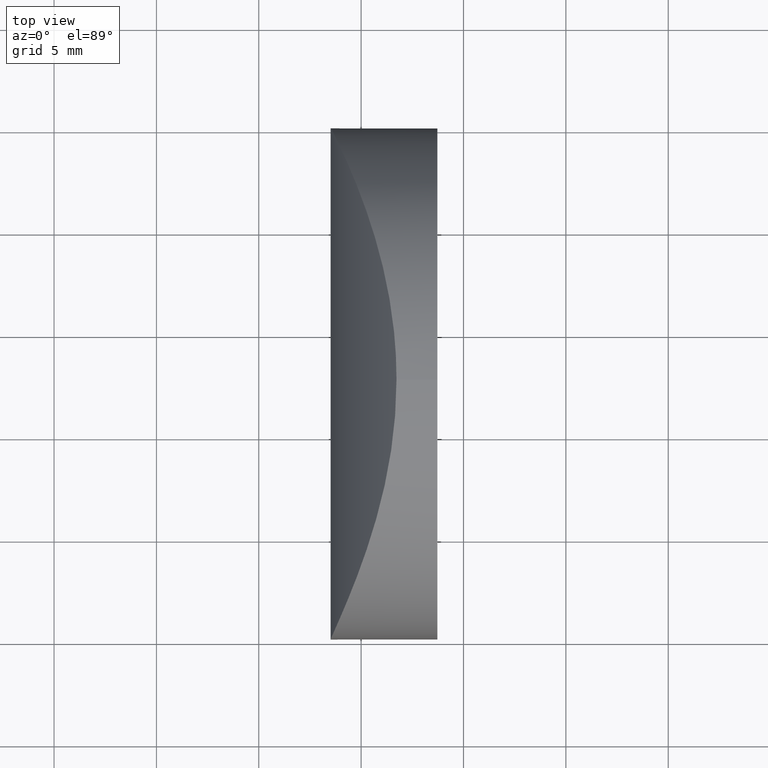
[diagram: clean part render]
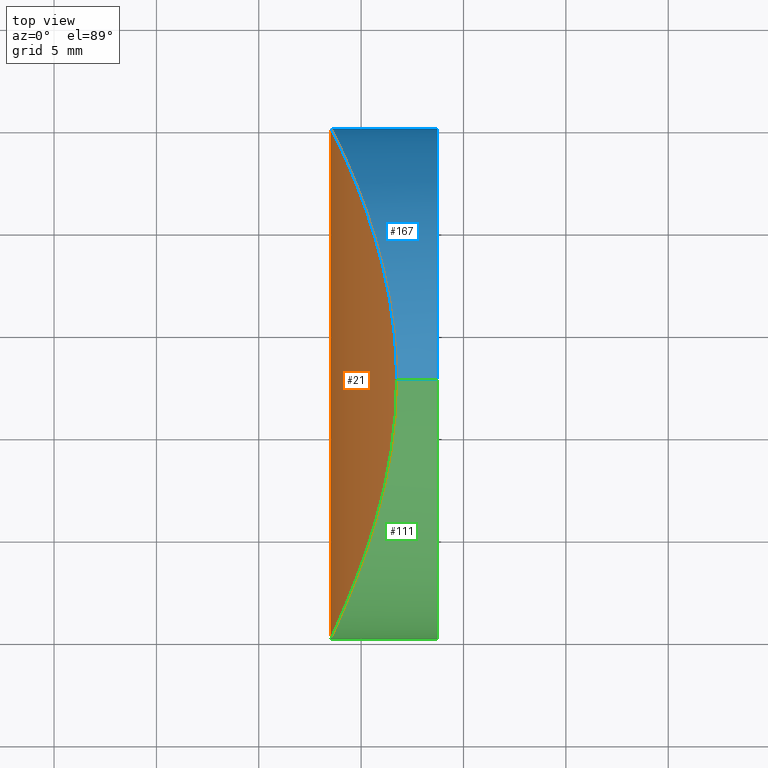
[diagram: same view with three faces highlighted in distinct colors, each labeled with its STEP entity id]
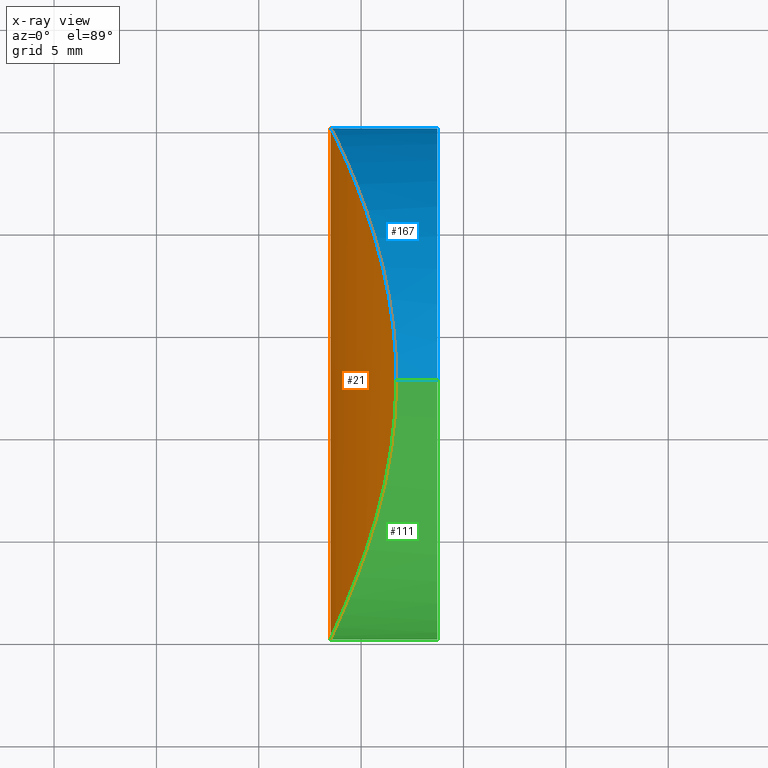
[diagram: x-ray of the same camera — body ghosted, the three highlighted faces saturated]
A machine part, top view with three faces highlighted in distinct colors.
The next image is the same camera in x-ray (body ghosted, the three faces saturated) — at least one of them is partly hidden behind the body in this view.
Their STEP definitions:

[orange] entity #21 — the highlighted cylindrical surface (partial cylindrical patch) has radius 25.85 mm, axis along (-0, -1, -0).
#1 = CARTESIAN_POINT ( 'NONE',  ( -18.70240602303702500, 16.95154989934607700, -11.68760404027151600 ) ) ;
#3 = FACE_OUTER_BOUND ( 'NONE', #39, .T. ) ;
#4 = CARTESIAN_POINT ( 'NONE',  ( -20.44156245546546200, 2.353589546820287600, 7.312014743330159700 ) ) ;
#5 = CARTESIAN_POINT ( 'NONE',  ( -20.44118431422601700, 22.64548785088048900, 7.313298907275904700 ) ) ;
#6 = CARTESIAN_POINT ( 'NONE',  ( -19.72739481466771500, 20.75137822210500700, -9.398244079578816500 ) ) ;
#8 = CARTESIAN_POINT ( 'NONE',  ( -19.41883760231147300, 19.80315594180086000, 10.15274856787935500 ) ) ;
#9 = CARTESIAN_POINT ( 'NONE',  ( -18.63047385431221100, 8.435351003139388100, 11.82792713064483400 ) ) ;
#13 = CARTESIAN_POINT ( 'NONE',  ( -18.31843094212300800, 14.16270583532338300, -12.41623411918229200 ) ) ;
#14 = CYLINDRICAL_SURFACE ( 'NONE', #158, 25.85000000000000500 ) ;
#17 = DIRECTION ( 'NONE',  ( -0.0000000000000000000, -1.000000000000000000, -0.0000000000000000000 ) ) ;
#18 = CARTESIAN_POINT ( 'NONE',  ( -21.11081156137414500, 24.18611729512018400, 4.455569728180015500 ) ) ;
#20 = CARTESIAN_POINT ( 'NONE',  ( -21.33703930934329700, 0.3293759513365440200, 2.880582604825903600 ) ) ;
#21 = ADVANCED_FACE ( 'NONE', ( #3 ), #14, .T. ) ;
#24 = CARTESIAN_POINT ( 'NONE',  ( -19.52163795461448700, 20.13002562355819700, 9.909340674142884000 ) ) ;
#25 = CARTESIAN_POINT ( 'NONE',  ( -19.83196897604203500, 3.949169470847378300, 9.126562245408836200 ) ) ;
#29 = CARTESIAN_POINT ( 'NONE',  ( -18.27160498506833300, 13.33994957588177500, -12.50000000000000000 ) ) ;
#31 = CARTESIAN_POINT ( 'NONE',  ( -19.72816707022187200, 4.246367135913612100, 9.396269530252531900 ) ) ;
#32 = CARTESIAN_POINT ( 'NONE',  ( -20.34228625704819700, 2.598014458656173100, 7.639606416398844000 ) ) ;
#33 = CARTESIAN_POINT ( 'NONE',  ( -18.50589817899405900, 15.78771967101535300, 12.06695041132207400 ) ) ;
#34 = CARTESIAN_POINT ( 'NONE',  ( -18.93880650995016900, 18.08338810621193800, 11.21314338893738900 ) ) ;
#37 = CARTESIAN_POINT ( 'NONE',  ( -21.49472766096213000, 24.99985936734059800, -0.8419274955730371400 ) ) ;
#38 = CARTESIAN_POINT ( 'NONE',  ( -18.45085760132201000, 9.617887782406231900, -12.17023868356398700 ) ) ;
#39 = EDGE_LOOP ( 'NONE', ( #208, #182 ) ) ;
#40 = CARTESIAN_POINT ( 'NONE',  ( -21.28822365938481600, 0.4325015005954184200, 3.285848202634221100 ) ) ;
#41 = CARTESIAN_POINT ( 'NONE',  ( -21.49494924748473700, -0.0003176082883690147400, 0.8347709504129641200 ) ) ;
#48 = CARTESIAN_POINT ( 'NONE',  ( -20.72480777485055000, 23.32610928301981100, 6.301302750242832900 ) ) ;
#52 = CARTESIAN_POINT ( 'NONE',  ( -18.70268098790453900, 8.047018456729013300, 11.68706322112476500 ) ) ;
#53 = CARTESIAN_POINT ( 'NONE',  ( -21.45385133134597000, 24.91594798411068000, -1.667685702775326000 ) ) ;
#55 = CARTESIAN_POINT ( 'NONE',  ( -21.49464121276190200, 0.0003194075535433215400, -0.8442558466217400200 ) ) ;
#56 = CARTESIAN_POINT ( 'NONE',  ( -19.12183236030230700, 6.206077826456388300, 10.83029278370120500 ) ) ;
#57 = CARTESIAN_POINT ( 'NONE',  ( -20.72414146800757400, 23.32456324702938800, -6.303907108934982500 ) ) ;
#60 = CARTESIAN_POINT ( 'NONE',  ( -18.50574310267438300, 9.213371567855354300, -12.06724321453933300 ) ) ;
#65 = CARTESIAN_POINT ( 'NONE',  ( -18.50368577678878900, 15.77241993638042300, -12.07113829577083300 ) ) ;
#68 = CARTESIAN_POINT ( 'NONE',  ( -20.13962153032738900, 3.114915523298480000, -8.266379302377798100 ) ) ;
#69 = CARTESIAN_POINT ( 'NONE',  ( -21.17616359006278900, 24.32750300025196200, 4.065954832770652900 ) ) ;
#70 = CARTESIAN_POINT ( 'NONE',  ( -18.63024021342601300, 16.56331591017902800, -11.82838010083085000 ) ) ;
#71 = CARTESIAN_POINT ( 'NONE',  ( -21.10996517993683600, 0.8157262206458111300, -4.460387085498029000 ) ) ;
#72 = CARTESIAN_POINT ( 'NONE',  ( -20.34134213634395400, 22.39963060002514800, -7.642649774606599800 ) ) ;
#74 = CARTESIAN_POINT ( 'NONE',  ( -21.10879739994929200, 24.18172136900544800, -4.466876030360057600 ) ) ;
#77 = CARTESIAN_POINT ( 'NONE',  ( -21.17359734200285000, 24.32196512203154600, -4.081949235081776100 ) ) ;
#79 = CARTESIAN_POINT ( 'NONE',  ( -18.70392176723665400, 8.040776547653754500, -11.68460189602905800 ) ) ;
#80 = CARTESIAN_POINT ( 'NONE',  ( -21.17535321017341200, 0.6742452814691074500, -4.071024584365550100 ) ) ;
#81 = CARTESIAN_POINT ( 'NONE',  ( -18.44974553401061400, 15.37299095485790300, -12.17231646288395600 ) ) ;
#85 = CARTESIAN_POINT ( 'NONE',  ( -19.72694203444028100, 4.249942391437728300, -9.399402683755738500 ) ) ;
#89 = DIRECTION ( 'NONE',  ( 0.0000000000000000000, 0.0000000000000000000, -1.000000000000000000 ) ) ;
#90 = CARTESIAN_POINT ( 'NONE',  ( -19.41863885798715100, 19.80251705480999600, -10.15321633900803300 ) ) ;
#91 = CARTESIAN_POINT ( 'NONE',  ( -18.50383849896116600, 9.226498979690779500, 12.07085012522144600 ) ) ;
#93 = CARTESIAN_POINT ( 'NONE',  ( -21.10963983893141800, 0.8164433895264816600, 4.462087848866468100 ) ) ;
#94 = CARTESIAN_POINT ( 'NONE',  ( -20.44060078092450900, 22.64406093420792800, -7.315267004343158200 ) ) ;
#95 = CARTESIAN_POINT ( 'NONE',  ( -20.14052076028404100, 21.88743107328531700, 8.263721779567738700 ) ) ;
#96 = CARTESIAN_POINT ( 'NONE',  ( -18.27160498506832900, 12.50000000000000000, -12.50000000000000000 ) ) ;
#97 = CARTESIAN_POINT ( 'NONE',  ( -19.12115235465433500, 6.208678759436716100, -10.83172951033555400 ) ) ;
#98 = CARTESIAN_POINT ( 'NONE',  ( -19.52094303699961500, 4.872150361015510400, -9.911010606443472400 ) ) ;
#104 = CARTESIAN_POINT ( 'NONE',  ( 4.355204334851265500, 25.00000000000000000, 4.286263797015675000E-017 ) ) ;
#106 = CARTESIAN_POINT ( 'NONE',  ( -21.17440029220077200, 0.6763020526081724400, 4.076945583734061400 ) ) ;
#107 = CARTESIAN_POINT ( 'NONE',  ( -20.72510263640964100, 1.673213537857158400, 6.300120131191813600 ) ) ;
#108 = CARTESIAN_POINT ( 'NONE',  ( -18.70419534461132100, 16.96064557591329700, 11.68406362946771400 ) ) ;
#109 = CARTESIAN_POINT ( 'NONE',  ( -20.34191516766071200, 22.40106185924512500, 7.640807147493392300 ) ) ;
#110 = EDGE_CURVE ( 'NONE', #219, #188, #217, .T. ) ;
#113 = CARTESIAN_POINT ( 'NONE',  ( -19.12132492067417300, 18.79201609963201800, -10.83137862194528400 ) ) ;
#116 = CARTESIAN_POINT ( 'NONE',  ( -20.03791678446253100, 21.61711241338396800, 8.560906680482425200 ) ) ;
#117 = CARTESIAN_POINT ( 'NONE',  ( -20.89441355162401200, 1.290616219030798600, -5.591863916841161200 ) ) ;
#123 = CARTESIAN_POINT ( 'NONE',  ( -20.03704535129930500, 3.385219746193157200, -8.563383267257087500 ) ) ;
#125 = CARTESIAN_POINT ( 'NONE',  ( -21.33640643598634800, 24.66928886546119400, -2.886198797000703500 ) ) ;
#126 = CARTESIAN_POINT ( 'NONE',  ( -21.33718792627720300, 0.3290646914393667900, -2.878903319281720400 ) ) ;
#127 = CARTESIAN_POINT ( 'NONE',  ( -18.45097640866272600, 15.38307043306696700, 12.17001652328602300 ) ) ;
#130 = CARTESIAN_POINT ( 'NONE',  ( -21.49486350026730400, 25.00014028302671700, 0.8377463910678419900 ) ) ;
#132 = CARTESIAN_POINT ( 'NONE',  ( -19.52138010644813100, 20.12921656202763600, -9.909959081310583800 ) ) ;
#133 = CARTESIAN_POINT ( 'NONE',  ( -18.31845340280766300, 10.83485904577776200, -12.41621630777484200 ) ) ;
#135 = CARTESIAN_POINT ( 'NONE',  ( -20.14093956500315800, 3.111478173514480100, 8.262479154108021400 ) ) ;
#137 = CARTESIAN_POINT ( 'NONE',  ( -19.41929275309724900, 5.195351625839095700, 10.15168885736246600 ) ) ;
#139 = EDGE_CURVE ( 'NONE', #188, #219, #178, .T. ) ;
#141 = CARTESIAN_POINT ( 'NONE',  ( -18.27160498506832200, 12.50000000000000200, 12.50000000000001100 ) ) ;
#146 = CARTESIAN_POINT ( 'NONE',  ( -20.72384487807244800, 1.676118177083455900, -6.305095198358583500 ) ) ;
#147 = CARTESIAN_POINT ( 'NONE',  ( -21.33781501767339300, 24.67225817017655800, 2.873324840803535000 ) ) ;
#152 = CARTESIAN_POINT ( 'NONE',  ( -18.63262010058380700, 16.57666098186030400, 11.82375693692428000 ) ) ;
#155 = CARTESIAN_POINT ( 'NONE',  ( -19.72771416886005700, 20.75231221879881700, 9.397428725765403000 ) ) ;
#157 = CARTESIAN_POINT ( 'NONE',  ( -18.27160498506832900, 12.50000000000000000, -12.50000000000000000 ) ) ;
#158 = AXIS2_PLACEMENT_3D ( 'NONE', #104, #17, #89 ) ;
#163 = CARTESIAN_POINT ( 'NONE',  ( -18.93835144248745900, 6.917964795757003800, 11.21413609760948300 ) ) ;
#164 = CARTESIAN_POINT ( 'NONE',  ( -21.45372547659947300, 0.08432672972229476900, -1.667351094841247800 ) ) ;
#165 = CARTESIAN_POINT ( 'NONE',  ( -20.03835218701706500, 3.381724409040712600, 8.559666547531309200 ) ) ;
#168 = CARTESIAN_POINT ( 'NONE',  ( -18.27160498506832200, 13.34023443830584400, 12.50000000000001100 ) ) ;
#170 = CARTESIAN_POINT ( 'NONE',  ( -21.45412927166883000, 24.91650930259949300, 1.661251078944563400 ) ) ;
#172 = CARTESIAN_POINT ( 'NONE',  ( -19.83151652482670700, 21.04955243043450300, 9.127760688660727000 ) ) ;
#174 = CARTESIAN_POINT ( 'NONE',  ( -21.45425667348072500, 0.08321287185746996400, 1.661559786139770000 ) ) ;
#175 = CARTESIAN_POINT ( 'NONE',  ( -18.31848523635723300, 14.16570070430319500, 12.41616004890406600 ) ) ;
#178 = B_SPLINE_CURVE_WITH_KNOTS ( 'NONE', 3,
 ( #200, #221, #230, #218, #91, #9, #52, #163, #56, #137, #197, #31, #25, #165, #135, #32, #4, #107, #220, #93, #106, #40, #20, #174, #41, #55, #164, #126, #209, #80, #71, #117, #146, #206, #215, #68, #123, #214, #85, #98, #227, #97, #205, #79, #189, #60, #38, #133, #226, #96 ),
 .UNSPECIFIED., .F., .F.,
 ( 4, 2, 2, 2, 2, 2, 2, 2, 2, 2, 2, 2, 2, 2, 2, 2, 2, 2, 2, 2, 2, 2, 2, 2, 4 ),
 ( 0.01984818097784744500, 0.02232946100564742200, 0.02357010101954740800, 0.02481074103344739500, 0.02729202106124737100, 0.02853266107514736100, 0.02977330108904734800, 0.03101394110294733800, 0.03225458111684732800, 0.03473586114464730100, 0.03597650115854728000, 0.03721714117244727400, 0.03969842120024723300, 0.04217970122804720600, 0.04342034124194718600, 0.04466098125584716500, 0.04714226128364713800, 0.04838290129754711800, 0.04962354131144709700, 0.05086418132534707700, 0.05210482133924705700, 0.05458610136704701600, 0.05582674138094699500, 0.05706738139484697500, 0.05954866142264693400 ),
 .UNSPECIFIED. ) ;
#179 = CARTESIAN_POINT ( 'NONE',  ( -18.27160498506832900, 12.50000000000000000, -12.50000000000000000 ) ) ;
#182 = ORIENTED_EDGE ( 'NONE', *, *, #139, .F. ) ;
#185 = CARTESIAN_POINT ( 'NONE',  ( -20.89417954816456900, 23.70882713063732400, -5.592367728451336900 ) ) ;
#187 = CARTESIAN_POINT ( 'NONE',  ( -20.14004038279987400, 21.88617558916645200, -8.265136986377456200 ) ) ;
#188 = VERTEX_POINT ( 'NONE', #141 ) ;
#189 = CARTESIAN_POINT ( 'NONE',  ( -18.63238859369455400, 8.424654939983508200, -11.82420601527334700 ) ) ;
#190 = CARTESIAN_POINT ( 'NONE',  ( -18.93794263422852700, 18.08030465869330800, -11.21497832143791000 ) ) ;
#196 = CARTESIAN_POINT ( 'NONE',  ( -20.89535130820467000, 23.71149176145042900, 5.587683655581534100 ) ) ;
#197 = CARTESIAN_POINT ( 'NONE',  ( -19.52207520773850600, 4.868607232266949600, 9.908288498266024600 ) ) ;
#200 = CARTESIAN_POINT ( 'NONE',  ( -18.27160498506832200, 12.50000000000000200, 12.50000000000001100 ) ) ;
#202 = CARTESIAN_POINT ( 'NONE',  ( -19.83116100217930700, 21.04854442224913700, -9.128697585979885800 ) ) ;
#204 = CARTESIAN_POINT ( 'NONE',  ( -19.12165836689077400, 18.79322246846567500, 10.83064687512930000 ) ) ;
#205 = CARTESIAN_POINT ( 'NONE',  ( -18.93839936234375500, 6.918335192272131500, -11.21398230071434200 ) ) ;
#206 = CARTESIAN_POINT ( 'NONE',  ( -20.44022327619455500, 2.356860323959534900, -7.316548250817506400 ) ) ;
#208 = ORIENTED_EDGE ( 'NONE', *, *, #110, .F. ) ;
#209 = CARTESIAN_POINT ( 'NONE',  ( -21.28912377972793700, 0.4305894696038837800, -3.278878661696361900 ) ) ;
#214 = CARTESIAN_POINT ( 'NONE',  ( -19.83070863452401500, 3.952733741957625400, -9.129895485231804400 ) ) ;
#215 = CARTESIAN_POINT ( 'NONE',  ( -20.34097090099788100, 2.601293632541305600, -7.643850447021880400 ) ) ;
#216 = CARTESIAN_POINT ( 'NONE',  ( -21.28981706373304000, 24.57088238852015700, 3.273471289871650900 ) ) ;
#217 = B_SPLINE_CURVE_WITH_KNOTS ( 'NONE', 3,
 ( #157, #29, #13, #81, #65, #70, #1, #190, #113, #90, #132, #6, #202, #225, #187, #72, #94, #57, #185, #74, #77, #222, #125, #53, #37, #130, #170, #147, #216, #69, #18, #196, #48, #5, #109, #95, #116, #172, #155, #24, #8, #204, #34, #108, #152, #33, #127, #175, #168, #224 ),
 .UNSPECIFIED., .F., .F.,
 ( 4, 2, 2, 2, 2, 2, 2, 2, 2, 2, 2, 2, 2, 2, 2, 2, 2, 2, 2, 2, 2, 2, 2, 2, 4 ),
 ( -0.01985229858081783200, -0.01737101860840126900, -0.01613037862219298500, -0.01488973863598470000, -0.01240845866356813200, -0.01116781867735984500, -0.009927178691151559600, -0.008686538704943272800, -0.007445898718734985900, -0.004964618746318408600, -0.003723978760110116500, -0.002483338773901826200, -2.058801485245453900E-006, 0.002479221170931335300, 0.003719861157139622100, 0.004960501143347912500, 0.007441781115764496700, 0.008682421101972790500, 0.009923061088181080900, 0.01116370107438937500, 0.01240434106059766900, 0.01488562103301425600, 0.01612626101922255300, 0.01736690100543085100, 0.01984818097784744500 ),
 .UNSPECIFIED. ) ;
#218 = CARTESIAN_POINT ( 'NONE',  ( -18.44986326270227700, 9.626056688685647300, 12.17209636246921000 ) ) ;
#219 = VERTEX_POINT ( 'NONE', #179 ) ;
#220 = CARTESIAN_POINT ( 'NONE',  ( -20.89511413187703300, 1.289071948691188600, 5.588200461055563100 ) ) ;
#221 = CARTESIAN_POINT ( 'NONE',  ( -18.27160498506832600, 11.65976554293972200, 12.50000000000001400 ) ) ;
#222 = CARTESIAN_POINT ( 'NONE',  ( -21.28752061446924100, 24.56600543331906600, -3.291303964605791300 ) ) ;
#224 = CARTESIAN_POINT ( 'NONE',  ( -18.27160498506832200, 12.50000000000000200, 12.50000000000001100 ) ) ;
#225 = CARTESIAN_POINT ( 'NONE',  ( -20.03748075472218200, 21.61594369234210700, -8.562143537309458100 ) ) ;
#226 = CARTESIAN_POINT ( 'NONE',  ( -18.27160498506833300, 11.66005040537014600, -12.50000000000000200 ) ) ;
#227 = CARTESIAN_POINT ( 'NONE',  ( -19.41818397272892200, 5.198974968693983500, -10.15427522162474400 ) ) ;
#230 = CARTESIAN_POINT ( 'NONE',  ( -18.31846275041462100, 10.83673597883052000, 12.41617786806475000 ) ) ;

[blue] entity #167 — the highlighted cylindrical surface (partial cylindrical patch) has radius 12.5 mm, axis along (1, -0, -0).
#1 = CARTESIAN_POINT ( 'NONE',  ( -18.70240602303702500, 16.95154989934607700, -11.68760404027151600 ) ) ;
#5 = CARTESIAN_POINT ( 'NONE',  ( -20.44118431422601700, 22.64548785088048900, 7.313298907275904700 ) ) ;
#6 = CARTESIAN_POINT ( 'NONE',  ( -19.72739481466771500, 20.75137822210500700, -9.398244079578816500 ) ) ;
#8 = CARTESIAN_POINT ( 'NONE',  ( -19.41883760231147300, 19.80315594180086000, 10.15274856787935500 ) ) ;
#11 = EDGE_CURVE ( 'NONE', #219, #229, #101, .T. ) ;
#13 = CARTESIAN_POINT ( 'NONE',  ( -18.31843094212300800, 14.16270583532338300, -12.41623411918229200 ) ) ;
#18 = CARTESIAN_POINT ( 'NONE',  ( -21.11081156137414500, 24.18611729512018400, 4.455569728180015500 ) ) ;
#19 = DIRECTION ( 'NONE',  ( 1.000000000000000000, -0.0000000000000000000, -2.775557561562888400E-016 ) ) ;
#24 = CARTESIAN_POINT ( 'NONE',  ( -19.52163795461448700, 20.13002562355819700, 9.909340674142884000 ) ) ;
#29 = CARTESIAN_POINT ( 'NONE',  ( -18.27160498506833300, 13.33994957588177500, -12.50000000000000000 ) ) ;
#33 = CARTESIAN_POINT ( 'NONE',  ( -18.50589817899405900, 15.78771967101535300, 12.06695041132207400 ) ) ;
#34 = CARTESIAN_POINT ( 'NONE',  ( -18.93880650995016900, 18.08338810621193800, 11.21314338893738900 ) ) ;
#37 = CARTESIAN_POINT ( 'NONE',  ( -21.49472766096213000, 24.99985936734059800, -0.8419274955730371400 ) ) ;
#43 = EDGE_CURVE ( 'NONE', #229, #58, #73, .T. ) ;
#48 = CARTESIAN_POINT ( 'NONE',  ( -20.72480777485055000, 23.32610928301981100, 6.301302750242832900 ) ) ;
#49 = ORIENTED_EDGE ( 'NONE', *, *, #11, .F. ) ;
#53 = CARTESIAN_POINT ( 'NONE',  ( -21.45385133134597000, 24.91594798411068000, -1.667685702775326000 ) ) ;
#57 = CARTESIAN_POINT ( 'NONE',  ( -20.72414146800757400, 23.32456324702938800, -6.303907108934982500 ) ) ;
#58 = VERTEX_POINT ( 'NONE', #162 ) ;
#61 = AXIS2_PLACEMENT_3D ( 'NONE', #184, #19, #114 ) ;
#64 = DIRECTION ( 'NONE',  ( 1.000000000000000000, -0.0000000000000000000, -2.775557561562888400E-016 ) ) ;
#65 = CARTESIAN_POINT ( 'NONE',  ( -18.50368577678878900, 15.77241993638042300, -12.07113829577083300 ) ) ;
#69 = CARTESIAN_POINT ( 'NONE',  ( -21.17616359006278900, 24.32750300025196200, 4.065954832770652900 ) ) ;
#70 = CARTESIAN_POINT ( 'NONE',  ( -18.63024021342601300, 16.56331591017902800, -11.82838010083085000 ) ) ;
#72 = CARTESIAN_POINT ( 'NONE',  ( -20.34134213634395400, 22.39963060002514800, -7.642649774606599800 ) ) ;
#73 = CIRCLE ( 'NONE', #145, 12.50000000000000500 ) ;
#74 = CARTESIAN_POINT ( 'NONE',  ( -21.10879739994929200, 24.18172136900544800, -4.466876030360057600 ) ) ;
#77 = CARTESIAN_POINT ( 'NONE',  ( -21.17359734200285000, 24.32196512203154600, -4.081949235081776100 ) ) ;
#78 = CARTESIAN_POINT ( 'NONE',  ( -16.27479566514873700, 12.50000000000000000, -12.50000000000000000 ) ) ;
#81 = CARTESIAN_POINT ( 'NONE',  ( -18.44974553401061400, 15.37299095485790300, -12.17231646288395600 ) ) ;
#82 = CARTESIAN_POINT ( 'NONE',  ( -28.97479566514872900, 12.50000000000000200, 12.50000000000001400 ) ) ;
#83 = VECTOR ( 'NONE', #64, 1000.000000000000000 ) ;
#84 = CARTESIAN_POINT ( 'NONE',  ( -16.27479566514873400, 12.50000000000000000, 4.517163217129455500E-015 ) ) ;
#90 = CARTESIAN_POINT ( 'NONE',  ( -19.41863885798715100, 19.80251705480999600, -10.15321633900803300 ) ) ;
#92 = EDGE_CURVE ( 'NONE', #188, #58, #211, .T. ) ;
#94 = CARTESIAN_POINT ( 'NONE',  ( -20.44060078092450900, 22.64406093420792800, -7.315267004343158200 ) ) ;
#95 = CARTESIAN_POINT ( 'NONE',  ( -20.14052076028404100, 21.88743107328531700, 8.263721779567738700 ) ) ;
#101 = LINE ( 'NONE', #143, #181 ) ;
#108 = CARTESIAN_POINT ( 'NONE',  ( -18.70419534461132100, 16.96064557591329700, 11.68406362946771400 ) ) ;
#109 = CARTESIAN_POINT ( 'NONE',  ( -20.34191516766071200, 22.40106185924512500, 7.640807147493392300 ) ) ;
#110 = EDGE_CURVE ( 'NONE', #219, #188, #217, .T. ) ;
#113 = CARTESIAN_POINT ( 'NONE',  ( -19.12132492067417300, 18.79201609963201800, -10.83137862194528400 ) ) ;
#114 = DIRECTION ( 'NONE',  ( -2.775557561562890400E-016, 0.0000000000000000000, -1.000000000000000000 ) ) ;
#116 = CARTESIAN_POINT ( 'NONE',  ( -20.03791678446253100, 21.61711241338396800, 8.560906680482425200 ) ) ;
#120 = FACE_OUTER_BOUND ( 'NONE', #131, .T. ) ;
#125 = CARTESIAN_POINT ( 'NONE',  ( -21.33640643598634800, 24.66928886546119400, -2.886198797000703500 ) ) ;
#127 = CARTESIAN_POINT ( 'NONE',  ( -18.45097640866272600, 15.38307043306696700, 12.17001652328602300 ) ) ;
#130 = CARTESIAN_POINT ( 'NONE',  ( -21.49486350026730400, 25.00014028302671700, 0.8377463910678419900 ) ) ;
#131 = EDGE_LOOP ( 'NONE', ( #228, #212, #192, #49 ) ) ;
#132 = CARTESIAN_POINT ( 'NONE',  ( -19.52138010644813100, 20.12921656202763600, -9.909959081310583800 ) ) ;
#134 = CYLINDRICAL_SURFACE ( 'NONE', #61, 12.50000000000000500 ) ;
#141 = CARTESIAN_POINT ( 'NONE',  ( -18.27160498506832200, 12.50000000000000200, 12.50000000000001100 ) ) ;
#143 = CARTESIAN_POINT ( 'NONE',  ( -28.97479566514873600, 12.50000000000000000, -12.49999999999999600 ) ) ;
#145 = AXIS2_PLACEMENT_3D ( 'NONE', #84, #210, #191 ) ;
#147 = CARTESIAN_POINT ( 'NONE',  ( -21.33781501767339300, 24.67225817017655800, 2.873324840803535000 ) ) ;
#152 = CARTESIAN_POINT ( 'NONE',  ( -18.63262010058380700, 16.57666098186030400, 11.82375693692428000 ) ) ;
#155 = CARTESIAN_POINT ( 'NONE',  ( -19.72771416886005700, 20.75231221879881700, 9.397428725765403000 ) ) ;
#157 = CARTESIAN_POINT ( 'NONE',  ( -18.27160498506832900, 12.50000000000000000, -12.50000000000000000 ) ) ;
#161 = DIRECTION ( 'NONE',  ( 1.000000000000000000, -0.0000000000000000000, -2.775557561562888400E-016 ) ) ;
#162 = CARTESIAN_POINT ( 'NONE',  ( -16.27479566514873000, 12.50000000000000200, 12.50000000000001100 ) ) ;
#167 = ADVANCED_FACE ( 'NONE', ( #120 ), #134, .T. ) ;
#168 = CARTESIAN_POINT ( 'NONE',  ( -18.27160498506832200, 13.34023443830584400, 12.50000000000001100 ) ) ;
#170 = CARTESIAN_POINT ( 'NONE',  ( -21.45412927166883000, 24.91650930259949300, 1.661251078944563400 ) ) ;
#172 = CARTESIAN_POINT ( 'NONE',  ( -19.83151652482670700, 21.04955243043450300, 9.127760688660727000 ) ) ;
#175 = CARTESIAN_POINT ( 'NONE',  ( -18.31848523635723300, 14.16570070430319500, 12.41616004890406600 ) ) ;
#179 = CARTESIAN_POINT ( 'NONE',  ( -18.27160498506832900, 12.50000000000000000, -12.50000000000000000 ) ) ;
#181 = VECTOR ( 'NONE', #161, 1000.000000000000000 ) ;
#184 = CARTESIAN_POINT ( 'NONE',  ( -28.97479566514873300, 12.50000000000000000, 8.042121320314324400E-015 ) ) ;
#185 = CARTESIAN_POINT ( 'NONE',  ( -20.89417954816456900, 23.70882713063732400, -5.592367728451336900 ) ) ;
#187 = CARTESIAN_POINT ( 'NONE',  ( -20.14004038279987400, 21.88617558916645200, -8.265136986377456200 ) ) ;
#188 = VERTEX_POINT ( 'NONE', #141 ) ;
#190 = CARTESIAN_POINT ( 'NONE',  ( -18.93794263422852700, 18.08030465869330800, -11.21497832143791000 ) ) ;
#191 = DIRECTION ( 'NONE',  ( -2.775557561562890400E-016, 0.0000000000000000000, -1.000000000000000000 ) ) ;
#192 = ORIENTED_EDGE ( 'NONE', *, *, #43, .F. ) ;
#196 = CARTESIAN_POINT ( 'NONE',  ( -20.89535130820467000, 23.71149176145042900, 5.587683655581534100 ) ) ;
#202 = CARTESIAN_POINT ( 'NONE',  ( -19.83116100217930700, 21.04854442224913700, -9.128697585979885800 ) ) ;
#204 = CARTESIAN_POINT ( 'NONE',  ( -19.12165836689077400, 18.79322246846567500, 10.83064687512930000 ) ) ;
#210 = DIRECTION ( 'NONE',  ( 1.000000000000000000, 0.0000000000000000000, -2.510324564891254900E-016 ) ) ;
#211 = LINE ( 'NONE', #82, #83 ) ;
#212 = ORIENTED_EDGE ( 'NONE', *, *, #92, .T. ) ;
#216 = CARTESIAN_POINT ( 'NONE',  ( -21.28981706373304000, 24.57088238852015700, 3.273471289871650900 ) ) ;
#217 = B_SPLINE_CURVE_WITH_KNOTS ( 'NONE', 3,
 ( #157, #29, #13, #81, #65, #70, #1, #190, #113, #90, #132, #6, #202, #225, #187, #72, #94, #57, #185, #74, #77, #222, #125, #53, #37, #130, #170, #147, #216, #69, #18, #196, #48, #5, #109, #95, #116, #172, #155, #24, #8, #204, #34, #108, #152, #33, #127, #175, #168, #224 ),
 .UNSPECIFIED., .F., .F.,
 ( 4, 2, 2, 2, 2, 2, 2, 2, 2, 2, 2, 2, 2, 2, 2, 2, 2, 2, 2, 2, 2, 2, 2, 2, 4 ),
 ( -0.01985229858081783200, -0.01737101860840126900, -0.01613037862219298500, -0.01488973863598470000, -0.01240845866356813200, -0.01116781867735984500, -0.009927178691151559600, -0.008686538704943272800, -0.007445898718734985900, -0.004964618746318408600, -0.003723978760110116500, -0.002483338773901826200, -2.058801485245453900E-006, 0.002479221170931335300, 0.003719861157139622100, 0.004960501143347912500, 0.007441781115764496700, 0.008682421101972790500, 0.009923061088181080900, 0.01116370107438937500, 0.01240434106059766900, 0.01488562103301425600, 0.01612626101922255300, 0.01736690100543085100, 0.01984818097784744500 ),
 .UNSPECIFIED. ) ;
#219 = VERTEX_POINT ( 'NONE', #179 ) ;
#222 = CARTESIAN_POINT ( 'NONE',  ( -21.28752061446924100, 24.56600543331906600, -3.291303964605791300 ) ) ;
#224 = CARTESIAN_POINT ( 'NONE',  ( -18.27160498506832200, 12.50000000000000200, 12.50000000000001100 ) ) ;
#225 = CARTESIAN_POINT ( 'NONE',  ( -20.03748075472218200, 21.61594369234210700, -8.562143537309458100 ) ) ;
#228 = ORIENTED_EDGE ( 'NONE', *, *, #110, .T. ) ;
#229 = VERTEX_POINT ( 'NONE', #78 ) ;

[green] entity #111 — the highlighted cylindrical surface (partial cylindrical patch) has radius 12.5 mm, axis along (1, -0, -0).
#4 = CARTESIAN_POINT ( 'NONE',  ( -20.44156245546546200, 2.353589546820287600, 7.312014743330159700 ) ) ;
#7 = ORIENTED_EDGE ( 'NONE', *, *, #139, .T. ) ;
#9 = CARTESIAN_POINT ( 'NONE',  ( -18.63047385431221100, 8.435351003139388100, 11.82792713064483400 ) ) ;
#11 = EDGE_CURVE ( 'NONE', #219, #229, #101, .T. ) ;
#12 = AXIS2_PLACEMENT_3D ( 'NONE', #177, #35, #76 ) ;
#16 = CIRCLE ( 'NONE', #75, 12.50000000000000500 ) ;
#20 = CARTESIAN_POINT ( 'NONE',  ( -21.33703930934329700, 0.3293759513365440200, 2.880582604825903600 ) ) ;
#25 = CARTESIAN_POINT ( 'NONE',  ( -19.83196897604203500, 3.949169470847378300, 9.126562245408836200 ) ) ;
#28 = EDGE_CURVE ( 'NONE', #58, #229, #16, .T. ) ;
#31 = CARTESIAN_POINT ( 'NONE',  ( -19.72816707022187200, 4.246367135913612100, 9.396269530252531900 ) ) ;
#32 = CARTESIAN_POINT ( 'NONE',  ( -20.34228625704819700, 2.598014458656173100, 7.639606416398844000 ) ) ;
#35 = DIRECTION ( 'NONE',  ( 1.000000000000000000, -0.0000000000000000000, -2.775557561562888400E-016 ) ) ;
#38 = CARTESIAN_POINT ( 'NONE',  ( -18.45085760132201000, 9.617887782406231900, -12.17023868356398700 ) ) ;
#40 = CARTESIAN_POINT ( 'NONE',  ( -21.28822365938481600, 0.4325015005954184200, 3.285848202634221100 ) ) ;
#41 = CARTESIAN_POINT ( 'NONE',  ( -21.49494924748473700, -0.0003176082883690147400, 0.8347709504129641200 ) ) ;
#42 = DIRECTION ( 'NONE',  ( 1.000000000000000000, 0.0000000000000000000, -2.510324564891254900E-016 ) ) ;
#50 = CARTESIAN_POINT ( 'NONE',  ( -16.27479566514873400, 12.50000000000000000, 4.517163217129455500E-015 ) ) ;
#52 = CARTESIAN_POINT ( 'NONE',  ( -18.70268098790453900, 8.047018456729013300, 11.68706322112476500 ) ) ;
#54 = ORIENTED_EDGE ( 'NONE', *, *, #28, .F. ) ;
#55 = CARTESIAN_POINT ( 'NONE',  ( -21.49464121276190200, 0.0003194075535433215400, -0.8442558466217400200 ) ) ;
#56 = CARTESIAN_POINT ( 'NONE',  ( -19.12183236030230700, 6.206077826456388300, 10.83029278370120500 ) ) ;
#58 = VERTEX_POINT ( 'NONE', #162 ) ;
#60 = CARTESIAN_POINT ( 'NONE',  ( -18.50574310267438300, 9.213371567855354300, -12.06724321453933300 ) ) ;
#64 = DIRECTION ( 'NONE',  ( 1.000000000000000000, -0.0000000000000000000, -2.775557561562888400E-016 ) ) ;
#68 = CARTESIAN_POINT ( 'NONE',  ( -20.13962153032738900, 3.114915523298480000, -8.266379302377798100 ) ) ;
#71 = CARTESIAN_POINT ( 'NONE',  ( -21.10996517993683600, 0.8157262206458111300, -4.460387085498029000 ) ) ;
#75 = AXIS2_PLACEMENT_3D ( 'NONE', #50, #42, #140 ) ;
#76 = DIRECTION ( 'NONE',  ( -2.775557561562890400E-016, 0.0000000000000000000, -1.000000000000000000 ) ) ;
#78 = CARTESIAN_POINT ( 'NONE',  ( -16.27479566514873700, 12.50000000000000000, -12.50000000000000000 ) ) ;
#79 = CARTESIAN_POINT ( 'NONE',  ( -18.70392176723665400, 8.040776547653754500, -11.68460189602905800 ) ) ;
#80 = CARTESIAN_POINT ( 'NONE',  ( -21.17535321017341200, 0.6742452814691074500, -4.071024584365550100 ) ) ;
#82 = CARTESIAN_POINT ( 'NONE',  ( -28.97479566514872900, 12.50000000000000200, 12.50000000000001400 ) ) ;
#83 = VECTOR ( 'NONE', #64, 1000.000000000000000 ) ;
#85 = CARTESIAN_POINT ( 'NONE',  ( -19.72694203444028100, 4.249942391437728300, -9.399402683755738500 ) ) ;
#91 = CARTESIAN_POINT ( 'NONE',  ( -18.50383849896116600, 9.226498979690779500, 12.07085012522144600 ) ) ;
#92 = EDGE_CURVE ( 'NONE', #188, #58, #211, .T. ) ;
#93 = CARTESIAN_POINT ( 'NONE',  ( -21.10963983893141800, 0.8164433895264816600, 4.462087848866468100 ) ) ;
#96 = CARTESIAN_POINT ( 'NONE',  ( -18.27160498506832900, 12.50000000000000000, -12.50000000000000000 ) ) ;
#97 = CARTESIAN_POINT ( 'NONE',  ( -19.12115235465433500, 6.208678759436716100, -10.83172951033555400 ) ) ;
#98 = CARTESIAN_POINT ( 'NONE',  ( -19.52094303699961500, 4.872150361015510400, -9.911010606443472400 ) ) ;
#100 = EDGE_LOOP ( 'NONE', ( #207, #7, #223, #54 ) ) ;
#101 = LINE ( 'NONE', #143, #181 ) ;
#106 = CARTESIAN_POINT ( 'NONE',  ( -21.17440029220077200, 0.6763020526081724400, 4.076945583734061400 ) ) ;
#107 = CARTESIAN_POINT ( 'NONE',  ( -20.72510263640964100, 1.673213537857158400, 6.300120131191813600 ) ) ;
#111 = ADVANCED_FACE ( 'NONE', ( #149 ), #173, .T. ) ;
#117 = CARTESIAN_POINT ( 'NONE',  ( -20.89441355162401200, 1.290616219030798600, -5.591863916841161200 ) ) ;
#123 = CARTESIAN_POINT ( 'NONE',  ( -20.03704535129930500, 3.385219746193157200, -8.563383267257087500 ) ) ;
#126 = CARTESIAN_POINT ( 'NONE',  ( -21.33718792627720300, 0.3290646914393667900, -2.878903319281720400 ) ) ;
#133 = CARTESIAN_POINT ( 'NONE',  ( -18.31845340280766300, 10.83485904577776200, -12.41621630777484200 ) ) ;
#135 = CARTESIAN_POINT ( 'NONE',  ( -20.14093956500315800, 3.111478173514480100, 8.262479154108021400 ) ) ;
#137 = CARTESIAN_POINT ( 'NONE',  ( -19.41929275309724900, 5.195351625839095700, 10.15168885736246600 ) ) ;
#139 = EDGE_CURVE ( 'NONE', #188, #219, #178, .T. ) ;
#140 = DIRECTION ( 'NONE',  ( -2.775557561562890400E-016, 0.0000000000000000000, -1.000000000000000000 ) ) ;
#141 = CARTESIAN_POINT ( 'NONE',  ( -18.27160498506832200, 12.50000000000000200, 12.50000000000001100 ) ) ;
#143 = CARTESIAN_POINT ( 'NONE',  ( -28.97479566514873600, 12.50000000000000000, -12.49999999999999600 ) ) ;
#146 = CARTESIAN_POINT ( 'NONE',  ( -20.72384487807244800, 1.676118177083455900, -6.305095198358583500 ) ) ;
#149 = FACE_OUTER_BOUND ( 'NONE', #100, .T. ) ;
#161 = DIRECTION ( 'NONE',  ( 1.000000000000000000, -0.0000000000000000000, -2.775557561562888400E-016 ) ) ;
#162 = CARTESIAN_POINT ( 'NONE',  ( -16.27479566514873000, 12.50000000000000200, 12.50000000000001100 ) ) ;
#163 = CARTESIAN_POINT ( 'NONE',  ( -18.93835144248745900, 6.917964795757003800, 11.21413609760948300 ) ) ;
#164 = CARTESIAN_POINT ( 'NONE',  ( -21.45372547659947300, 0.08432672972229476900, -1.667351094841247800 ) ) ;
#165 = CARTESIAN_POINT ( 'NONE',  ( -20.03835218701706500, 3.381724409040712600, 8.559666547531309200 ) ) ;
#173 = CYLINDRICAL_SURFACE ( 'NONE', #12, 12.50000000000000500 ) ;
#174 = CARTESIAN_POINT ( 'NONE',  ( -21.45425667348072500, 0.08321287185746996400, 1.661559786139770000 ) ) ;
#177 = CARTESIAN_POINT ( 'NONE',  ( -28.97479566514873300, 12.50000000000000000, 8.042121320314324400E-015 ) ) ;
#178 = B_SPLINE_CURVE_WITH_KNOTS ( 'NONE', 3,
 ( #200, #221, #230, #218, #91, #9, #52, #163, #56, #137, #197, #31, #25, #165, #135, #32, #4, #107, #220, #93, #106, #40, #20, #174, #41, #55, #164, #126, #209, #80, #71, #117, #146, #206, #215, #68, #123, #214, #85, #98, #227, #97, #205, #79, #189, #60, #38, #133, #226, #96 ),
 .UNSPECIFIED., .F., .F.,
 ( 4, 2, 2, 2, 2, 2, 2, 2, 2, 2, 2, 2, 2, 2, 2, 2, 2, 2, 2, 2, 2, 2, 2, 2, 4 ),
 ( 0.01984818097784744500, 0.02232946100564742200, 0.02357010101954740800, 0.02481074103344739500, 0.02729202106124737100, 0.02853266107514736100, 0.02977330108904734800, 0.03101394110294733800, 0.03225458111684732800, 0.03473586114464730100, 0.03597650115854728000, 0.03721714117244727400, 0.03969842120024723300, 0.04217970122804720600, 0.04342034124194718600, 0.04466098125584716500, 0.04714226128364713800, 0.04838290129754711800, 0.04962354131144709700, 0.05086418132534707700, 0.05210482133924705700, 0.05458610136704701600, 0.05582674138094699500, 0.05706738139484697500, 0.05954866142264693400 ),
 .UNSPECIFIED. ) ;
#179 = CARTESIAN_POINT ( 'NONE',  ( -18.27160498506832900, 12.50000000000000000, -12.50000000000000000 ) ) ;
#181 = VECTOR ( 'NONE', #161, 1000.000000000000000 ) ;
#188 = VERTEX_POINT ( 'NONE', #141 ) ;
#189 = CARTESIAN_POINT ( 'NONE',  ( -18.63238859369455400, 8.424654939983508200, -11.82420601527334700 ) ) ;
#197 = CARTESIAN_POINT ( 'NONE',  ( -19.52207520773850600, 4.868607232266949600, 9.908288498266024600 ) ) ;
#200 = CARTESIAN_POINT ( 'NONE',  ( -18.27160498506832200, 12.50000000000000200, 12.50000000000001100 ) ) ;
#205 = CARTESIAN_POINT ( 'NONE',  ( -18.93839936234375500, 6.918335192272131500, -11.21398230071434200 ) ) ;
#206 = CARTESIAN_POINT ( 'NONE',  ( -20.44022327619455500, 2.356860323959534900, -7.316548250817506400 ) ) ;
#207 = ORIENTED_EDGE ( 'NONE', *, *, #92, .F. ) ;
#209 = CARTESIAN_POINT ( 'NONE',  ( -21.28912377972793700, 0.4305894696038837800, -3.278878661696361900 ) ) ;
#211 = LINE ( 'NONE', #82, #83 ) ;
#214 = CARTESIAN_POINT ( 'NONE',  ( -19.83070863452401500, 3.952733741957625400, -9.129895485231804400 ) ) ;
#215 = CARTESIAN_POINT ( 'NONE',  ( -20.34097090099788100, 2.601293632541305600, -7.643850447021880400 ) ) ;
#218 = CARTESIAN_POINT ( 'NONE',  ( -18.44986326270227700, 9.626056688685647300, 12.17209636246921000 ) ) ;
#219 = VERTEX_POINT ( 'NONE', #179 ) ;
#220 = CARTESIAN_POINT ( 'NONE',  ( -20.89511413187703300, 1.289071948691188600, 5.588200461055563100 ) ) ;
#221 = CARTESIAN_POINT ( 'NONE',  ( -18.27160498506832600, 11.65976554293972200, 12.50000000000001400 ) ) ;
#223 = ORIENTED_EDGE ( 'NONE', *, *, #11, .T. ) ;
#226 = CARTESIAN_POINT ( 'NONE',  ( -18.27160498506833300, 11.66005040537014600, -12.50000000000000200 ) ) ;
#227 = CARTESIAN_POINT ( 'NONE',  ( -19.41818397272892200, 5.198974968693983500, -10.15427522162474400 ) ) ;
#229 = VERTEX_POINT ( 'NONE', #78 ) ;
#230 = CARTESIAN_POINT ( 'NONE',  ( -18.31846275041462100, 10.83673597883052000, 12.41617786806475000 ) ) ;